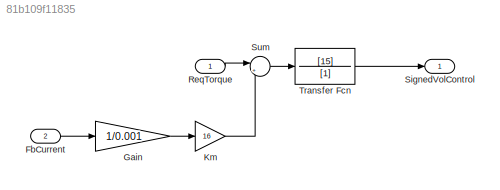
MODEL slx_81b109f11835
KIND model
CONFIG AbsTol = auto
CONFIG EnableMultiTasking = off
CONFIG FixedStep = auto
CONFIG MaxStep = auto
CONFIG MinStep = auto
CONFIG RelTol = 1e-3
CONFIG SampleTimeConstraint = Unconstrained
CONFIG SolverName = VariableStepAuto
CONFIG StartTime = 0.0
CONFIG StopTime = 10.0
BLOCK [Inport] FbCurrent
  Port = 2
BLOCK [Gain] Gain
  Gain = 1/0.001
BLOCK [Gain] Km
  Gain = 16
BLOCK [Inport] ReqTorque
BLOCK [Outport] SignedVolControl
BLOCK [Sum] Sum
  Inputs = |+-
BLOCK [TransferFcn] Transfer Fcn
  Denominator = [1]
  Numerator = [15]
LINE FbCurrent:1 -> Gain:1
LINE Gain:1 -> Km:1
LINE Km:1 -> Sum:2
LINE ReqTorque:1 -> Sum:1
LINE Sum:1 -> Transfer Fcn:1
LINE Transfer Fcn:1 -> SignedVolControl:1
